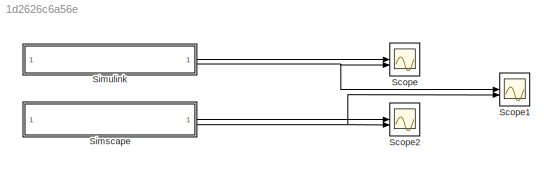
MODEL slx_1d2626c6a56e
KIND model
CONFIG AbsTol = auto
CONFIG EnableMultiTasking = off
CONFIG FixedStep = auto
CONFIG MaxStep = 0.000001
CONFIG MinStep = auto
CONFIG RelTol = 1e-3
CONFIG SampleTimeConstraint = Unconstrained
CONFIG SolverName = VariableStepAuto
CONFIG StartTime = 0.0
CONFIG StopTime = .001
BLOCK [Scope] Scope
  Floating = off
  NumInputPorts = 2
  ScopeSpecificationString = Simulink.scopes.TimeScopeBlockCfg('CurrentConfiguration', extmgr.ConfigurationSet(extmgr.Configuration('Core','General UI',true),extmgr.Configuration('Core','Source UI',true),extmgr.Configuration('Sources','WiredSimulink',true),extmgr.Configuration('Visuals','Time Domain',true,'SerializedDisplays',{struct('MinYLimReal','-3.86187','MaxYLimReal','8.86693','YLabelReal','','MinYLimMag','0.00000','MaxY...<+1376ch>
BLOCK [Scope] Scope1
  Floating = off
  NumInputPorts = 2
  ScopeSpecificationString = Simulink.scopes.TimeScopeBlockCfg('CurrentConfiguration', extmgr.ConfigurationSet(extmgr.Configuration('Core','General UI',true),extmgr.Configuration('Core','Source UI',true),extmgr.Configuration('Sources','WiredSimulink',true,'DataLoggingVariableName','ScopeData1'),extmgr.Configuration('Visuals','Time Domain',true,'SerializedDisplays',{struct('MinYLimReal','-3.88467','MaxYLimReal','8.87246','YLab...<+1540ch>
BLOCK [Scope] Scope2
  Floating = off
  NumInputPorts = 2
  ScopeSpecificationString = Simulink.scopes.TimeScopeBlockCfg('CurrentConfiguration', extmgr.ConfigurationSet(extmgr.Configuration('Core','General UI',true),extmgr.Configuration('Core','Source UI',true),extmgr.Configuration('Sources','WiredSimulink',true,'DataLoggingVariableName','ScopeData2'),extmgr.Configuration('Visuals','Time Domain',true,'SerializedDisplays',{struct('MinYLimReal','-0.95507','MaxYLimReal','8.51625','YLab...<+1538ch>
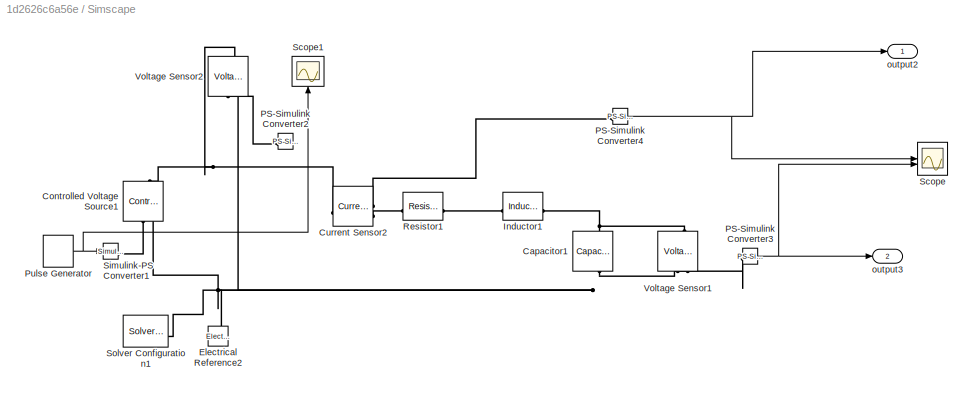
BLOCK [SubSystem] Simscape
BLOCK [Reference] Simscape/Capacitor1  REF=ee_lib/Passive/Capacitor
  NameLocation = left
  SourceBlock = ee_lib/Passive/Capacitor
  SourceType = Capacitor
BLOCK [Reference] Simscape/Controlled Voltage Source1  REF=fl_lib/Electrical/Electrical Sources/Controlled Voltage
Source
  NameLocation = right
  SourceBlock = fl_lib/Electrical/Electrical Sources/Controlled Voltage\nSource
  SourceType = Controlled Voltage\nSource
BLOCK [Reference] Simscape/Current Sensor2  REF=fl_lib/Electrical/Electrical Sensors/Current Sensor
  LibrarySourceBlock = ee_lib/Sensors &\nTransducers/Current Sensor
  SourceBlock = fl_lib/Electrical/Electrical Sensors/Current Sensor
  SourceType = Current Sensor
BLOCK [Reference] Simscape/Electrical Reference2  REF=fl_lib/Electrical/Electrical Elements/Electrical Reference
  LibrarySourceBlock = ee_lib/Connectors &\nReferences/Electrical Reference
  NameLocation = right
  SourceBlock = fl_lib/Electrical/Electrical Elements/Electrical Reference
  SourceType = Electrical Reference
BLOCK [Reference] Simscape/Inductor1  REF=ee_lib/Passive/Inductor
  SourceBlock = ee_lib/Passive/Inductor
  SourceType = Inductor
BLOCK [Reference] Simscape/PS-Simulink Converter2  REF=nesl_utility/PS-Simulink
Converter
  NameLocation = right
  SourceBlock = nesl_utility/PS-Simulink\nConverter
  SourceType = PS-Simulink\nConverter
BLOCK [Reference] Simscape/PS-Simulink Converter3  REF=nesl_utility/PS-Simulink
Converter
  SourceBlock = nesl_utility/PS-Simulink\nConverter
  SourceType = PS-Simulink\nConverter
BLOCK [Reference] Simscape/PS-Simulink Converter4  REF=nesl_utility/PS-Simulink
Converter
  SourceBlock = nesl_utility/PS-Simulink\nConverter
  SourceType = PS-Simulink\nConverter
BLOCK [DiscretePulseGenerator] Simscape/Pulse Generator
  Amplitude = 4.8
  Period = 1/frec
  PulseType = Time based
  PulseWidth = 50
BLOCK [Reference] Simscape/Resistor1  REF=ee_lib/Passive/Resistor
  NameLocation = top
  SourceBlock = ee_lib/Passive/Resistor
  SourceType = Resistor
BLOCK [Scope] Simscape/Scope
  Floating = off
  NumInputPorts = 2
  ScopeSpecificationString = Simulink.scopes.TimeScopeBlockCfg('CurrentConfiguration', extmgr.ConfigurationSet(extmgr.Configuration('Core','General UI',true),extmgr.Configuration('Core','Source UI',true),extmgr.Configuration('Sources','WiredSimulink',true,'DataLoggingVariableName','ScopeData2'),extmgr.Configuration('Visuals','Time Domain',true,'SerializedDisplays',{struct('MinYLimReal','-1.05165','MaxYLimReal','6.06136','YLab...<+1661ch>
BLOCK [Scope] Simscape/Scope1
  Floating = off
  NameLocation = right
  NumInputPorts = 1
  ScopeSpecificationString = Simulink.scopes.TimeScopeBlockCfg('CurrentConfiguration', extmgr.ConfigurationSet(extmgr.Configuration('Core','General UI',true),extmgr.Configuration('Core','Source UI',true),extmgr.Configuration('Sources','WiredSimulink',true,'DataLoggingVariableName','ScopeData3'),extmgr.Configuration('Visuals','Time Domain',true,'SerializedDisplays',{struct('MinYLimReal','4.00000','MaxYLimReal','6.00000','YLabe...<+1515ch>
BLOCK [Reference] Simscape/Simulink-PS Converter1  REF=nesl_utility/Simulink-PS
Converter
  SourceBlock = nesl_utility/Simulink-PS\nConverter
  SourceType = Simulink-PS\nConverter
BLOCK [Reference] Simscape/Solver Configuration1  REF=nesl_utility/Solver
Configuration
  SourceBlock = nesl_utility/Solver\nConfiguration
  SourceType = Solver\nConfiguration
BLOCK [Reference] Simscape/Voltage Sensor1  REF=fl_lib/Electrical/Electrical Sensors/Voltage Sensor
  LibrarySourceBlock = ee_lib/Sensors &\nTransducers/Voltage Sensor
  NameLocation = right
  SourceBlock = fl_lib/Electrical/Electrical Sensors/Voltage Sensor
  SourceType = Voltage Sensor
BLOCK [Reference] Simscape/Voltage Sensor2  REF=fl_lib/Electrical/Electrical Sensors/Voltage Sensor
  LibrarySourceBlock = ee_lib/Sensors &\nTransducers/Voltage Sensor
  NameLocation = right
  SourceBlock = fl_lib/Electrical/Electrical Sensors/Voltage Sensor
  SourceType = Voltage Sensor
BLOCK [Outport] Simscape/output2
BLOCK [Outport] Simscape/output3
  Port = 2
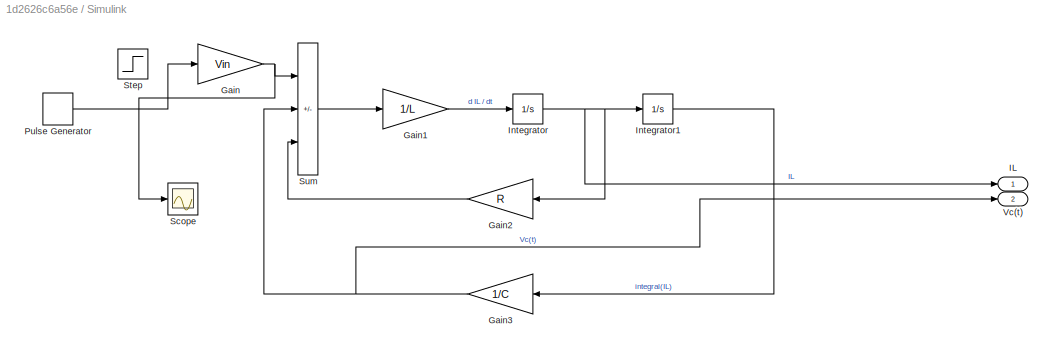
BLOCK [SubSystem] Simulink
BLOCK [Gain] Simulink/Gain
  Gain = Vin
BLOCK [Gain] Simulink/Gain1
  Gain = 1/L
BLOCK [Gain] Simulink/Gain2
  Gain = R
  NameLocation = top
BLOCK [Gain] Simulink/Gain3
  Gain = 1/C
  NameLocation = top
BLOCK [Outport] Simulink/IL
BLOCK [Integrator] Simulink/Integrator
BLOCK [Integrator] Simulink/Integrator1
BLOCK [DiscretePulseGenerator] Simulink/Pulse Generator
  Period = 1/frec
  PulseType = Time based
  PulseWidth = 50
BLOCK [Scope] Simulink/Scope
  Floating = off
  NumInputPorts = 1
  ScopeSpecificationString = Simulink.scopes.TimeScopeBlockCfg('CurrentConfiguration', extmgr.ConfigurationSet(extmgr.Configuration('Core','General UI',true),extmgr.Configuration('Core','Source UI',true),extmgr.Configuration('Sources','WiredSimulink',true,'DataLoggingVariableName','ScopeData1'),extmgr.Configuration('Visuals','Time Domain',true,'SerializedDisplays',{struct('MinYLimReal','-0.625','MaxYLimReal','5.625','YLabelRe...<+1410ch>
BLOCK [Step] Simulink/Step
  SampleTime = 0
  Time = 0
BLOCK [Sum] Simulink/Sum
  IconShape = rectangular
  Inputs = +--
BLOCK [Outport] Simulink/Vc(t)
  Port = 2
NET Simscape/PS-Simulink Converter3:1 -> Simscape/Scope:2, Simscape/output3:1
NET Simscape/PS-Simulink Converter4:1 -> Simscape/Scope:1, Simscape/output2:1
NET Simscape/Pulse Generator:1 -> Simscape/Scope1:1, Simscape/Simulink-PS Converter1:1
LINE Simscape:1 -> Scope2:1
NET Simscape:2 -> Scope1:2, Scope2:2
LINE Simulink/Gain1:1 -> Simulink/Integrator:1
LINE Simulink/Gain2:1 -> Simulink/Sum:3
NET Simulink/Gain3:1 -> Simulink/Sum:2, Simulink/Vc(t):1
NET Simulink/Gain:1 -> Simulink/Scope:1, Simulink/Sum:1
LINE Simulink/Integrator1:1 -> Simulink/Gain3:1
NET Simulink/Integrator:1 -> Simulink/Gain2:1, Simulink/IL:1, Simulink/Integrator1:1
LINE Simulink/Pulse Generator:1 -> Simulink/Gain:1
LINE Simulink/Sum:1 -> Simulink/Gain1:1
LINE Simulink:1 -> Scope:1
NET Simulink:2 -> Scope1:1, Scope:2
PNET net1: Simscape/Capacitor1:LConn1 -- Simscape/Inductor1:RConn1 -- Simscape/Voltage Sensor1:LConn1
PNET net2: Simscape/Capacitor1:RConn1 -- Simscape/Controlled Voltage Source1:RConn2 -- Simscape/Electrical Reference2:LConn1 -- Simscape/Solver Configuration1:RConn1 -- Simscape/Voltage Sensor1:RConn2 -- Simscape/Voltage Sensor2:RConn2
PNET net3: Simscape/Controlled Voltage Source1:LConn1 -- Simscape/Current Sensor2:LConn1 -- Simscape/Voltage Sensor2:LConn1
PLINE Simscape/Controlled Voltage Source1:RConn1 -- Simscape/Simulink-PS Converter1:RConn1
PLINE Simscape/Current Sensor2:RConn1 -- Simscape/PS-Simulink Converter4:LConn1
PLINE Simscape/Current Sensor2:RConn2 -- Simscape/Resistor1:RConn1
PLINE Simscape/Inductor1:LConn1 -- Simscape/Resistor1:LConn1
PLINE Simscape/PS-Simulink Converter2:LConn1 -- Simscape/Voltage Sensor2:RConn1
PLINE Simscape/PS-Simulink Converter3:LConn1 -- Simscape/Voltage Sensor1:RConn1
note: NET lines group one-source signal fan-out (src -> all destinations, sorted); 1:1 wires keep LINE; PNET lines group multi-terminal physical nets as a canonical sorted terminal list (undirected conserving connections); 2-terminal nets keep the pairwise PLINE form
